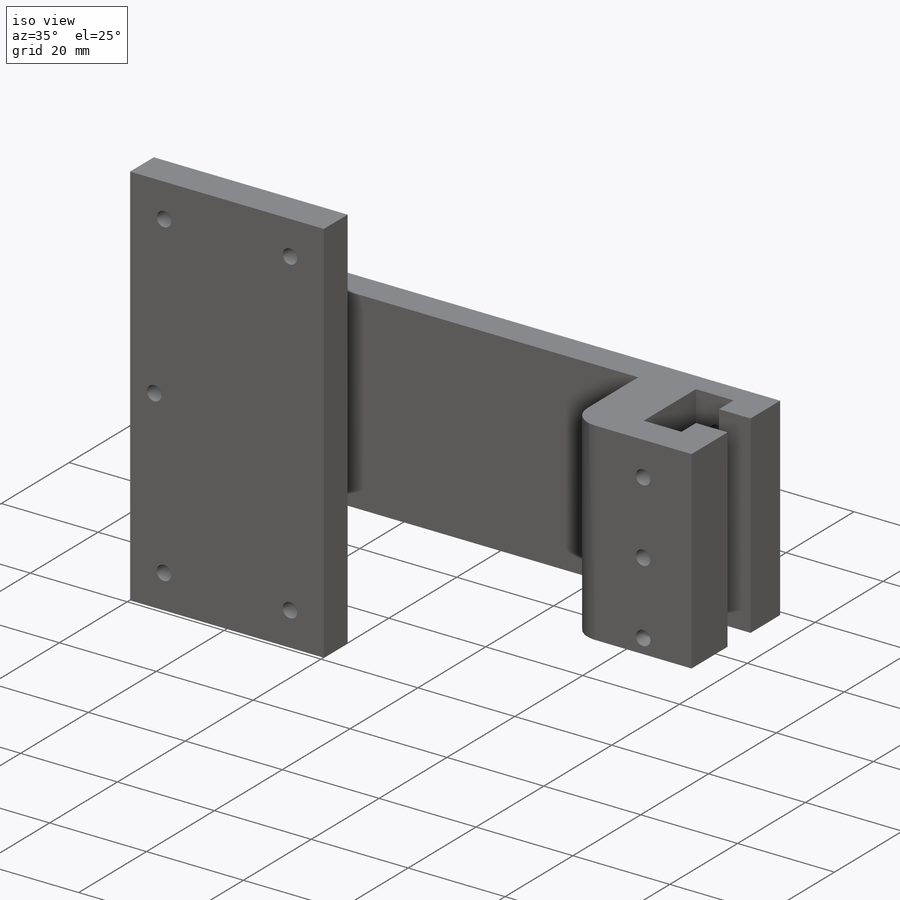
[diagram: iso view]
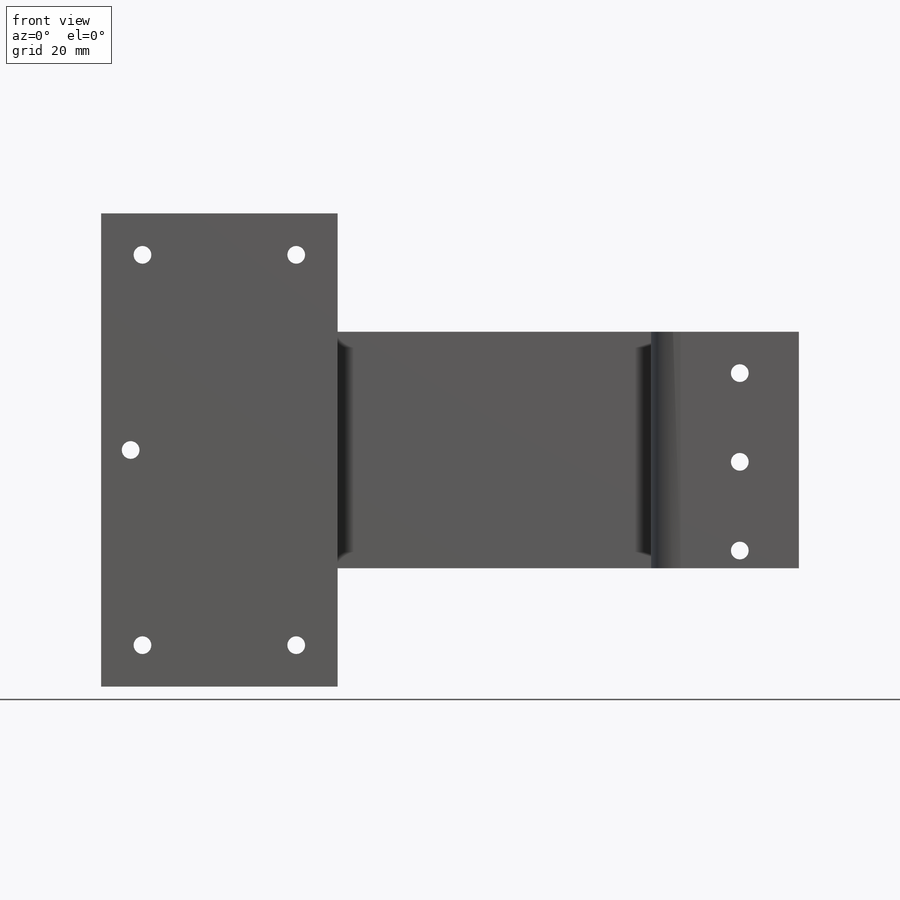
[diagram: front view]
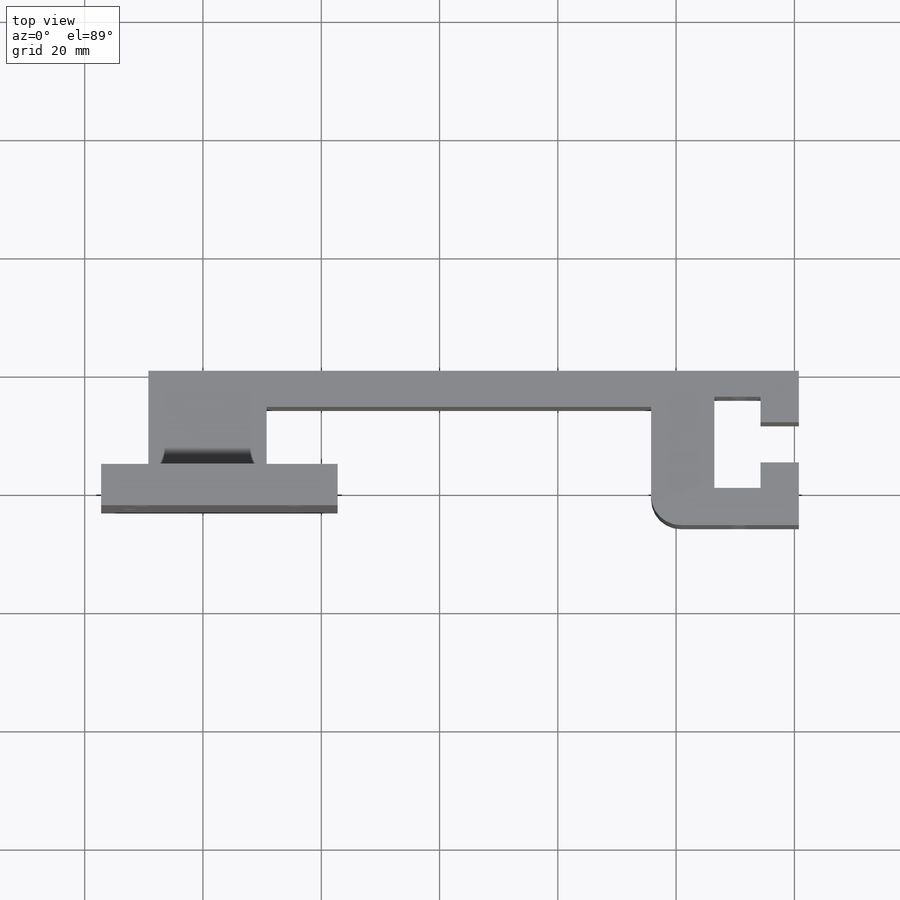
[diagram: top view]
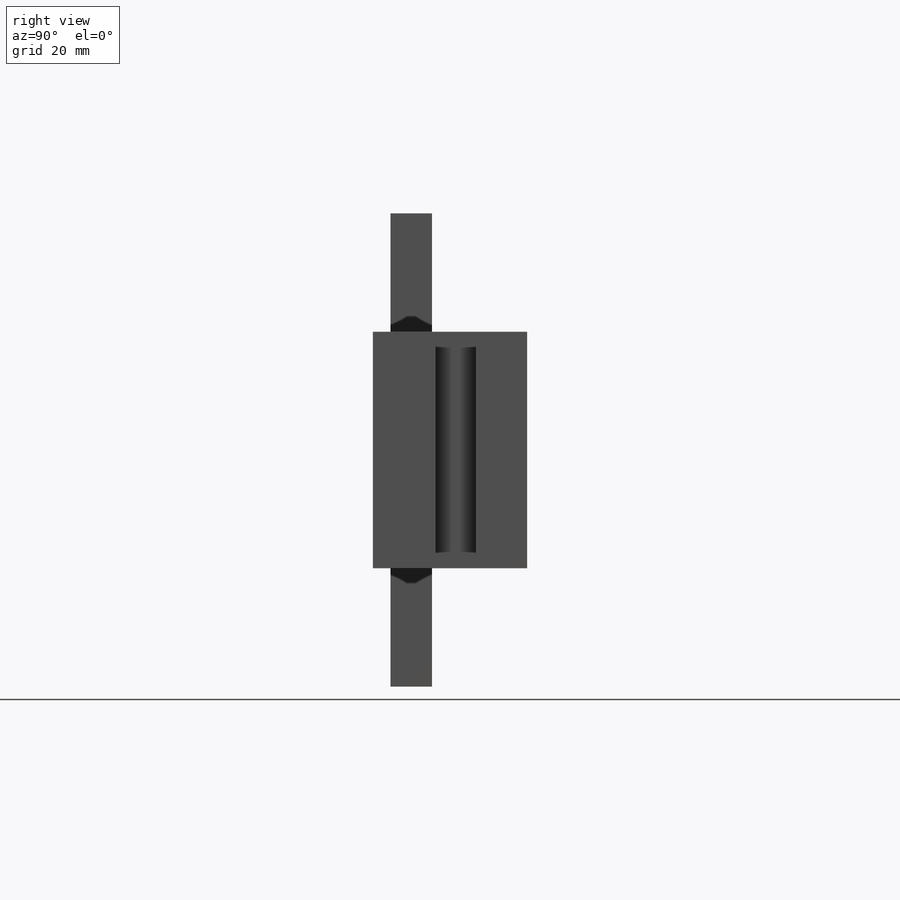
[diagram: right view]
SOLIDWORKS PART (.sldprt)
format: sldprt  version: not decoded by parser v0  size: 289,280 bytes
history: native  units: mm
features: sketch x7, cut_extrude x5, extrude x2, material x1, fillet x1 (+13 scaffold rows collapsed)
feature tree (29):
  scaffold x13  (default folders/planes/origin — collapsed)
  material  "Material <not specified>"
  sketch  "Sketch1"  dims[D1=40.0mm D2=110.0mm]
  extrude  "Boss-Extrude1"  Depth=26.1mm
  sketch  "Sketch2"  dims[D1=0.0mm D2=0.0mm D3=4.3mm D4=4.3mm D5=6.8mm D6=8.7mm D7=7.8mm D8=6.5mm D9=14.7mm]
  cut_extrude  "Cut-Extrude1"  [1 undecoded]
  sketch  "Sketch3"  dims[D1=25.0mm D2=0.0mm D3=0.0mm D4=20.0mm]
  cut_extrude  "Cut-Extrude2"  Depth=20mm
  sketch  "Sketch5"  dims[c1.D1=3.0mm c1.D2=3.0mm c1.D3=3.0mm c1.D4=~6.788214mm c1.D5=3.0mm c1.D6=3.0mm c1.D7=~5.717014mm c1.D8=3.0mm c1.D9=3.0mm c2.D2=7.0mm c2.D3=15.0mm c2.D4=15.0mm c2.D6=15.0mm c2.D7=15.0mm c2.D9=15.0mm]
  cut_extrude  "Cut-Extrude3"  [1 undecoded]
  fillet  "Fillet1"  Radius=5mm
  sketch  "Sketch8"  dims[D1=0.0mm D2=0.0mm D3=0.0mm D4=0.0mm]
  cut_extrude  "Cut-Extrude4"  Depth=3mm
  sketch  "Sketch9"  dims[D1=78.0mm D2=40.0mm D3=20.0mm D4=20.0mm]
  extrude  "Boss-Extrude3"  Depth=7mm
  sketch  "Sketch10"  dims[c1.D1=~6.08169mm c1.D2=~6.08169mm c1.D3=3.0mm c1.D4=~5.706855mm c1.D5=~5.706855mm c1.D6=3.0mm c1.D7=~7.124423mm c1.D8=~7.124423mm c1.D9=3.0mm c1.D10=3.0mm c1.D11=3.0mm c1.D12=3.0mm c1.D13=~6.277976mm c1.D14=3.0mm c1.D15=3.0mm c2.D1=7.0mm c2.D2=7.0mm c2.D4=7.0mm c2.D5=7.0mm c2.D7=5.0mm c2.D8=40.0mm c2.D11=7.0mm c2.D12=7.0mm c2.D13=7.0mm c2.D15=7.0mm]
  cut_extrude  "Cut-Extrude5"  Depth=7mm
decode coverage: 13 of 15 modeling features carry decoded parameters
note: ~ marks probable driven/reference dimensions
note: 2 parameter values undecoded
note: suppression state not decoded; provenance and decode notes live in map.json
